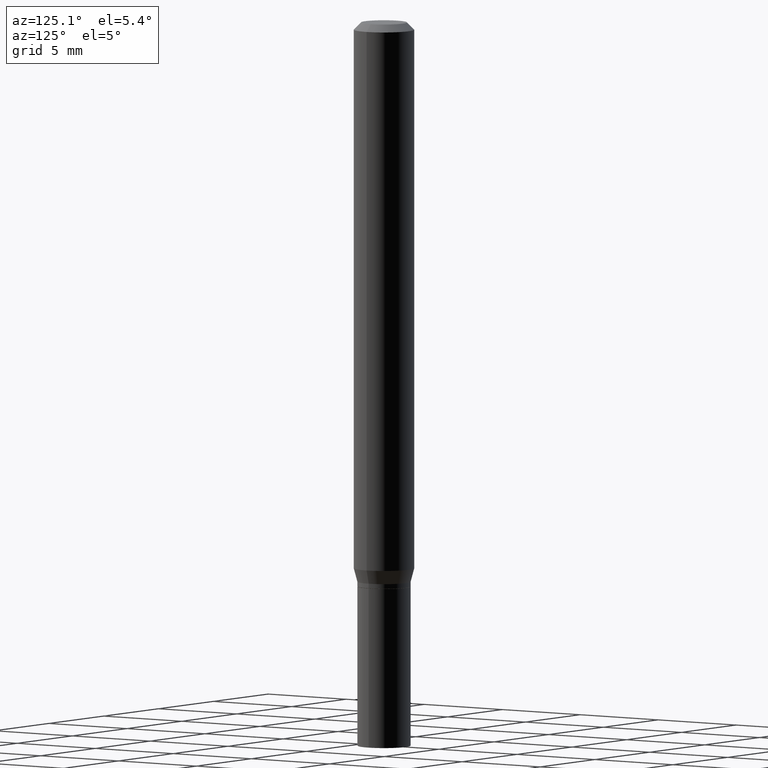
[diagram: clean part render]
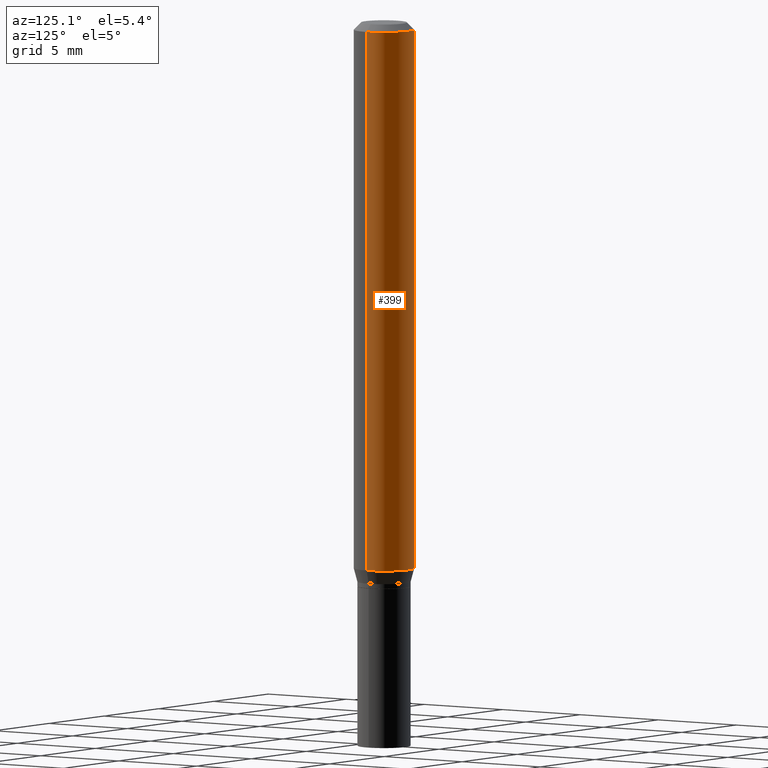
[diagram: same view with one face highlighted and labeled with its STEP entity id]
A machine part, auxiliary view. The second image highlights one B-rep face of the part: STEP entity #399.
In plain terms, the highlighted cylindrical surface (edge-blend (fillet) strip) has radius 1.5875 mm, axis along (-0, 0, 1).
Its self-contained STEP definition (entity closure, byte-faithful):
#12 = VERTEX_POINT ( 'NONE', #143 ) ;
#35 = AXIS2_PLACEMENT_3D ( 'NONE', #258, #325, #70 ) ;
#38 = DIRECTION ( 'NONE',  ( -2.445468806185136877E-29, 3.491481338843145188E-15, 1.000000000000000000 ) ) ;
#41 = DIRECTION ( 'NONE',  ( -2.445468806185136597E-29, 3.491481338843145583E-15, 1.000000000000000000 ) ) ;
#43 = EDGE_CURVE ( 'NONE', #344, #61, #105, .T. ) ;
#59 = EDGE_CURVE ( 'NONE', #200, #12, #123, .T. ) ;
#61 = VERTEX_POINT ( 'NONE', #180 ) ;
#69 = CARTESIAN_POINT ( 'NONE',  ( 0.06250000000000000000, -4.364351673553916694E-16, 3.047610484872459871E-30 ) ) ;
#70 = DIRECTION ( 'NONE',  ( 1.000000000000000000, -6.982962677686266711E-15, 0.000000000000000000 ) ) ;
#90 = LINE ( 'NONE', #340, #266 ) ;
#105 = CIRCLE ( 'NONE', #35, 0.06250000000000000000 ) ;
#118 = CARTESIAN_POINT ( 'NONE',  ( 0.06250000000000000000, -4.888073874380388472E-16, -0.01499999999999999944 ) ) ;
#123 = CIRCLE ( 'NONE', #463, 0.06250000000000000000 ) ;
#128 = CYLINDRICAL_SURFACE ( 'NONE', #400, 0.06250000000000000000 ) ;
#138 = EDGE_CURVE ( 'NONE', #200, #344, #361, .T. ) ;
#143 = CARTESIAN_POINT ( 'NONE',  ( -0.06250000000000000000, -3.508301250081176552E-15, -1.132009618943233376 ) ) ;
#180 = CARTESIAN_POINT ( 'NONE',  ( -0.06250000000000000000, -1.558292130156880705E-15, -0.01499999999999999944 ) ) ;
#193 = CARTESIAN_POINT ( 'NONE',  ( 0.06250000000000000000, -4.388825627286631627E-15, -1.132009618943233376 ) ) ;
#195 = VECTOR ( 'NONE', #38, 39.37007874015748143 ) ;
#200 = VERTEX_POINT ( 'NONE', #193 ) ;
#210 = ORIENTED_EDGE ( 'NONE', *, *, #43, .F. ) ;
#214 = DIRECTION ( 'NONE',  ( 1.000000000000000000, -6.982962677686262766E-15, 0.000000000000000000 ) ) ;
#258 = CARTESIAN_POINT ( 'NONE',  ( 3.668203209277705088E-31, -5.237222008264718399E-17, -0.01499999999999999944 ) ) ;
#266 = VECTOR ( 'NONE', #272, 39.37007874015748143 ) ;
#272 = DIRECTION ( 'NONE',  ( -2.445468806185136877E-29, 3.491481338843145188E-15, 1.000000000000000000 ) ) ;
#276 = EDGE_LOOP ( 'NONE', ( #415, #306, #210, #389 ) ) ;
#277 = DIRECTION ( 'NONE',  ( -2.445468806185136597E-29, 3.491481338843145583E-15, 1.000000000000000000 ) ) ;
#306 = ORIENTED_EDGE ( 'NONE', *, *, #373, .T. ) ;
#312 = FACE_OUTER_BOUND ( 'NONE', #276, .T. ) ;
#325 = DIRECTION ( 'NONE',  ( -2.445468806185136597E-29, 3.491481338843145583E-15, 1.000000000000000000 ) ) ;
#340 = CARTESIAN_POINT ( 'NONE',  ( -0.06250000000000000000, 4.440892098500626162E-16, -3.074334431409316114E-30 ) ) ;
#344 = VERTEX_POINT ( 'NONE', #118 ) ;
#357 = CARTESIAN_POINT ( 'NONE',  ( 2.768294211427200085E-29, -3.952390459931239169E-15, -1.132009618943233376 ) ) ;
#361 = LINE ( 'NONE', #69, #195 ) ;
#373 = EDGE_CURVE ( 'NONE', #12, #61, #90, .T. ) ;
#389 = ORIENTED_EDGE ( 'NONE', *, *, #138, .F. ) ;
#399 = ADVANCED_FACE ( 'NONE', ( #312 ), #128, .T. ) ;
#400 = AXIS2_PLACEMENT_3D ( 'NONE', #416, #277, #455 ) ;
#415 = ORIENTED_EDGE ( 'NONE', *, *, #59, .T. ) ;
#416 = CARTESIAN_POINT ( 'NONE',  ( 0.000000000000000000, 0.000000000000000000, 0.000000000000000000 ) ) ;
#455 = DIRECTION ( 'NONE',  ( 1.000000000000000000, -6.982962677686266711E-15, 4.876176775795935793E-29 ) ) ;
#463 = AXIS2_PLACEMENT_3D ( 'NONE', #357, #41, #214 ) ;